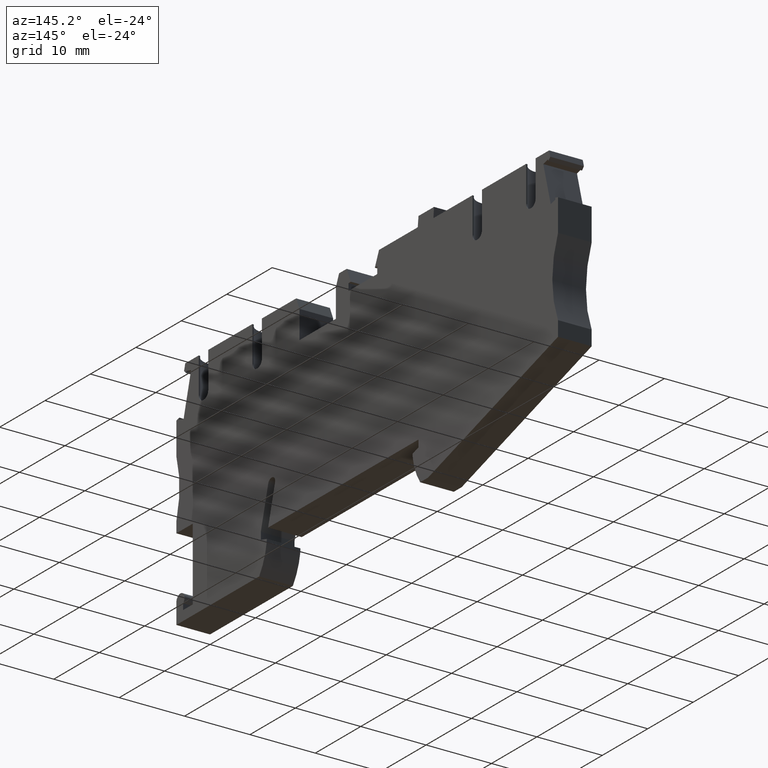
[diagram: clean part render]
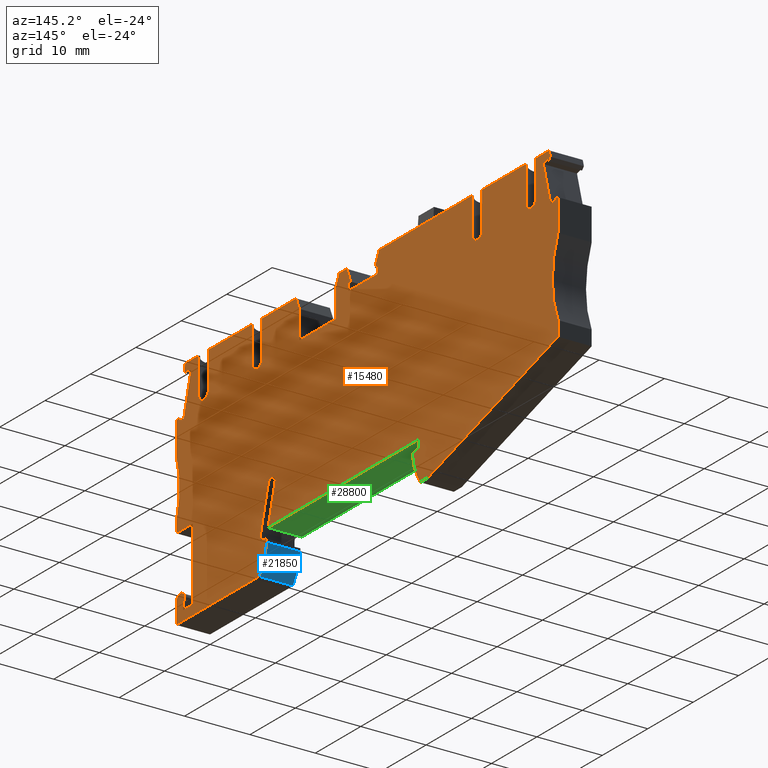
[diagram: same view with three faces highlighted in distinct colors, each labeled with its STEP entity id]
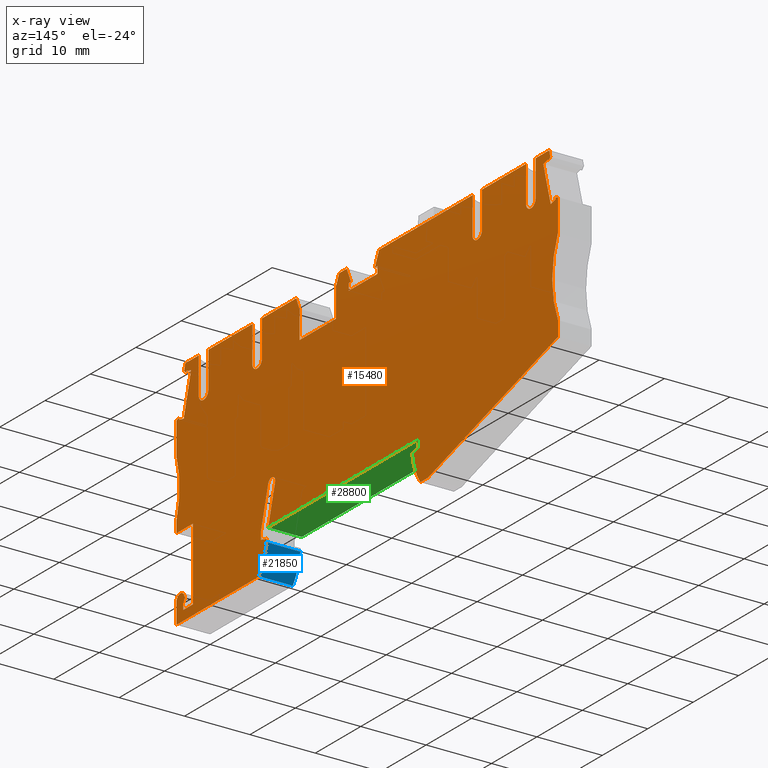
[diagram: x-ray of the same camera — body ghosted, the three highlighted faces saturated]
A machine part, auxiliary view with three faces highlighted in distinct colors.
The next image is the same camera in x-ray (body ghosted, the three faces saturated) — at least one of them is partly hidden behind the body in this view.
Their STEP definitions:

[orange] entity #15480 — the highlighted planar face has unit normal (-1, 0, 0).
#120=CARTESIAN_POINT('',(-22.3678327783245,-21.2000000001803,
53.6699999998948));
#130=VERTEX_POINT('',#120);
#280=CARTESIAN_POINT('',(-22.3678327783245,-16.3000793279218,
53.6699999998976));
#290=VERTEX_POINT('',#280);
#320=CARTESIAN_POINT('',(-22.3678327783245,-39.6931569607133,
53.6699999998842));
#330=DIRECTION('',(-2.05391259555654E-15,1.,5.73423253324989E-13));
#340=VECTOR('',#330,1.);
#350=LINE('',#320,#340);
#360=EDGE_CURVE('',#130,#290,#350,.T.);
#1160=CARTESIAN_POINT('',(15.5196672216766,-12.3250000000004,
53.6699999999044));
#1170=VERTEX_POINT('',#1160);
#1200=CARTESIAN_POINT('',(15.5196672216766,-44.3451570119223,
53.6700000000004));
#1210=DIRECTION('',(0.,1.,0.));
#1220=VECTOR('',#1210,1.);
#1230=LINE('',#1200,#1220);
#1240=CARTESIAN_POINT('',(15.5196672216766,-11.2550000000008,
53.669999999905));
#1250=VERTEX_POINT('',#1240);
#1260=EDGE_CURVE('',#1170,#1250,#1230,.T.);
#1530=CARTESIAN_POINT('',(13.4506669409568,-9.15000000000267,
53.669999999906));
#1540=VERTEX_POINT('',#1530);
#1590=CARTESIAN_POINT('',(-0.588529799346603,-42.3673191137585,
53.6699999998853));
#1600=DIRECTION('',(-0.389303997086923,-0.921109330021222,
-5.75151037907062E-13));
#1610=VECTOR('',#1600,1.);
#1620=LINE('',#1590,#1610);
#1630=CARTESIAN_POINT('',(12.7321672216754,-10.8500000000026,
53.6699999999049));
#1640=VERTEX_POINT('',#1630);
#1650=EDGE_CURVE('',#1540,#1640,#1620,.T.);
#2100=CARTESIAN_POINT('',(-3.76783277832417,-38.3999999999923,
53.6699999998872));
#2110=VERTEX_POINT('',#2100);
#2140=CARTESIAN_POINT('',(-4.69574524451491,-41.8630164687898,
53.6699999999973));
#2150=DIRECTION('',(0.258819045102717,0.965925826289016,0.));
#2160=VECTOR('',#2150,1.);
#2170=LINE('',#2140,#2160);
#2180=CARTESIAN_POINT('',(-2.15824717892757,-32.3929447639179,
53.6699999998908));
#2190=VERTEX_POINT('',#2180);
#2200=EDGE_CURVE('',#2110,#2190,#2170,.T.);
#3600=CARTESIAN_POINT('',(21.3167687545899,-11.2550000000008,
53.6699999999057));
#3610=VERTEX_POINT('',#3600);
#3660=CARTESIAN_POINT('',(-30.9543174626305,-11.2550000000008,
53.6699999998994));
#3670=DIRECTION('',(1.,0.,1.20466137065733E-13));
#3680=VECTOR('',#3670,1.);
#3690=LINE('',#3660,#3680);
#3700=CARTESIAN_POINT('',(21.8446672216767,-11.2550000000008,
53.6699999999058));
#3710=VERTEX_POINT('',#3700);
#3720=EDGE_CURVE('',#3610,#3710,#3690,.T.);
#5210=CARTESIAN_POINT('',(31.4487054040428,-46.3009969707497,
53.6699999998869));
#5220=DIRECTION('',(0.402320578211921,-0.915498854366965,
-4.76507722169117E-13));
#5230=VECTOR('',#5220,1.);
#5240=LINE('',#5210,#5230);
#5250=CARTESIAN_POINT('',(15.1225128467016,-9.15000000000248,
53.6699999999062));
#5260=VERTEX_POINT('',#5250);
#5270=CARTESIAN_POINT('',(16.0475656887622,-11.2550000000008,
53.6699999999051));
#5280=VERTEX_POINT('',#5270);
#5290=EDGE_CURVE('',#5260,#5280,#5240,.T.);
#5680=CARTESIAN_POINT('',(-26.7897303657746,-39.1502162070807,
53.6699999998839));
#5690=DIRECTION('',(0.258819045102715,0.965925826289016,
5.8507365618965E-13));
#5700=VECTOR('',#5690,1.);
#5710=LINE('',#5680,#5700);
#5720=CARTESIAN_POINT('',(-20.7658666864001,-16.6688508978045,
53.6699999998976));
#5730=VERTEX_POINT('',#5720);
#5740=CARTESIAN_POINT('',(-19.1288362261254,-10.5593700465262,
53.6699999999013));
#5750=VERTEX_POINT('',#5740);
#5760=EDGE_CURVE('',#5730,#5750,#5710,.T.);
#6190=CARTESIAN_POINT('',(-2.4678327783249,-39.848333950161,
53.6699999998865));
#6200=VERTEX_POINT('',#6190);
#6370=CARTESIAN_POINT('',(-2.46783277832461,-40.3000000000014,
53.6699999998859));
#6380=VERTEX_POINT('',#6370);
#6410=CARTESIAN_POINT('',(-2.46783277832347,-42.1365697226813,
53.6699999999973));
#6420=DIRECTION('',(6.29260532569731E-13,-1.,0.));
#6430=VECTOR('',#6420,1.);
#6440=LINE('',#6410,#6430);
#6450=EDGE_CURVE('',#6200,#6380,#6440,.T.);
#7130=CARTESIAN_POINT('',(-20.8678330870157,-42.9000001007158,
53.6699999998825));
#7140=VERTEX_POINT('',#7130);
#7310=CARTESIAN_POINT('',(-18.7678330870612,-42.9000001007158,
53.6699999998828));
#7320=VERTEX_POINT('',#7310);
#7350=CARTESIAN_POINT('',(-34.8398349047691,-42.9000001007158,
53.6699999998808));
#7360=DIRECTION('',(1.,-1.38777878078145E-16,1.20473075959637E-13));
#7370=VECTOR('',#7360,1.);
#7380=LINE('',#7350,#7370);
#7390=EDGE_CURVE('',#7140,#7320,#7380,.T.);
#7620=CARTESIAN_POINT('',(-22.3678330870434,-41.2999999943141,
53.6699999998932));
#7630=VERTEX_POINT('',#7620);
#7660=CARTESIAN_POINT('',(-22.3678330870598,-39.6931569228054,
53.6699999998842));
#7670=DIRECTION('',(3.85705356542587E-13,1.,5.73430192218893E-13));
#7680=VECTOR('',#7670,1.);
#7690=LINE('',#7660,#7680);
#7700=CARTESIAN_POINT('',(-22.3678330870616,-44.4000000000009,
53.6699999998815));
#7710=VERTEX_POINT('',#7700);
#7720=EDGE_CURVE('',#7710,#7630,#7690,.T.);
#8540=CARTESIAN_POINT('',(-20.232855258731,-10.5454626322162,
53.6699999999011));
#8550=VERTEX_POINT('',#8540);
#8600=CARTESIAN_POINT('',(-27.8621918696399,-39.0185344922433,
53.6699999998839));
#8610=DIRECTION('',(0.258819045101928,0.965925826289227,
5.8507365618965E-13));
#8620=VECTOR('',#8610,1.);
#8630=LINE('',#8600,#8620);
#8640=CARTESIAN_POINT('',(-20.1623768602548,-10.2824336682667,
53.6699999999013));
#8650=VERTEX_POINT('',#8640);
#8660=EDGE_CURVE('',#8550,#8650,#8630,.T.);
#9440=CARTESIAN_POINT('',(30.9321672216756,-46.2375740568382,
53.6699999999973));
#9450=DIRECTION('',(0.,1.,0.));
#9460=VECTOR('',#9450,1.);
#9470=LINE('',#9440,#9460);
#9480=CARTESIAN_POINT('',(30.9321672216756,-39.5000000000005,
53.6699999998907));
#9490=VERTEX_POINT('',#9480);
#9500=CARTESIAN_POINT('',(30.9321672216756,-38.4000000000006,
53.6699999998913));
#9510=VERTEX_POINT('',#9500);
#9520=EDGE_CURVE('',#9490,#9510,#9470,.T.);
#9860=CARTESIAN_POINT('',(29.3756912534038,-19.9194100470033,
53.6699999999017));
#9870=DIRECTION('',(1.20466702215975E-13,5.7343834486746E-13,-1.));
#9880=DIRECTION('',(-1.,0.,-1.20466702215975E-13));
#9890=AXIS2_PLACEMENT_3D('',#9860,#9870,#9880);
#9900=PLANE('',#9890);
#9910=CARTESIAN_POINT('',(61.6321672216756,-50.0070600765573,
53.6699999998884));
#9920=DIRECTION('',(-8.32667268468867E-17,-1.,-5.73430192218893E-13));
#9930=VECTOR('',#9920,1.);
#9940=LINE('',#9910,#9930);
#9950=CARTESIAN_POINT('',(61.6321672217037,-33.2000000000664,
53.6700000000533));
#9960=VERTEX_POINT('',#9950);
#9970=CARTESIAN_POINT('',(61.6321672216756,-35.494301062852,
53.6699999998967));
#9980=VERTEX_POINT('',#9970);
#9990=EDGE_CURVE('',#9960,#9980,#9940,.T.);
#10000=ORIENTED_EDGE('',*,*,#9990,.F.);
#10010=CARTESIAN_POINT('',(-37.7300719678448,-66.4390920013757,
53.669999999867));
#10020=DIRECTION('',(-0.954769257307126,-0.297347717834187,
-2.85521606357975E-13));
#10030=VECTOR('',#10020,1.);
#10040=LINE('',#10010,#10030);
#10050=CARTESIAN_POINT('',(33.0363951674783,-44.4000000000008,
53.6699999998881));
#10060=VERTEX_POINT('',#10050);
#10070=EDGE_CURVE('',#9980,#10060,#10040,.T.);
#10080=ORIENTED_EDGE('',*,*,#10070,.F.);
#10090=CARTESIAN_POINT('',(-35.0240117337567,-44.3999999999968,
53.6699999998799));
#10100=DIRECTION('',(-1.,5.79120085220097E-14,-1.20466137065733E-13));
#10110=VECTOR('',#10100,1.);
#10120=LINE('',#10090,#10110);
#10130=CARTESIAN_POINT('',(31.2911108748078,-44.4000000000007,
53.669999999892));
#10140=VERTEX_POINT('',#10130);
#10150=EDGE_CURVE('',#10060,#10140,#10120,.T.);
#10160=ORIENTED_EDGE('',*,*,#10150,.F.);
#10170=CARTESIAN_POINT('',(39.0261399010515,-38.8846282117031,
53.6699999999973));
#10180=DIRECTION('',(0.,0.,-1.));
#10190=DIRECTION('',(-1.,0.,0.));
#10200=AXIS2_PLACEMENT_3D('',#10170,#10180,#10190);
#10210=CIRCLE('',#10200,9.499999999999);
#10220=CARTESIAN_POINT('',(29.6321672216751,-40.3000000000011,
53.6699999998901));
#10230=VERTEX_POINT('',#10220);
#10240=EDGE_CURVE('',#10140,#10230,#10210,.T.);
#10250=ORIENTED_EDGE('',*,*,#10240,.F.);
#10260=CARTESIAN_POINT('',(29.6321672216711,-46.0779541276638,
53.6699999999973));
#10270=DIRECTION('',(6.9022565440946E-13,1.,0.));
#10280=VECTOR('',#10270,1.);
#10290=LINE('',#10260,#10280);
#10300=CARTESIAN_POINT('',(29.6321672216754,-39.8483339501609,
53.6699999998903));
#10310=VERTEX_POINT('',#10300);
#10320=EDGE_CURVE('',#10230,#10310,#10290,.T.);
#10330=ORIENTED_EDGE('',*,*,#10320,.F.);
#10340=CARTESIAN_POINT('',(-36.6456801825381,-57.6074296381885,
53.6699999999973));
#10350=DIRECTION('',(0.965925826289086,0.258819045102457,0.));
#10360=VECTOR('',#10350,1.);
#10370=LINE('',#10340,#10360);
#10380=EDGE_CURVE('',#10310,#9490,#10370,.T.);
#10390=ORIENTED_EDGE('',*,*,#10380,.F.);
#10400=ORIENTED_EDGE('',*,*,#9520,.F.);
#10410=CARTESIAN_POINT('',(-34.2873043683398,-38.4000000000007,
53.6699999998835));
#10420=DIRECTION('',(-1.,0.,-1.20466137065733E-13));
#10430=VECTOR('',#10420,1.);
#10440=LINE('',#10410,#10430);
#10450=CARTESIAN_POINT('',(-2.1678327783247,-38.4000000000007,
53.6699999998873));
#10460=VERTEX_POINT('',#10450);
#10470=EDGE_CURVE('',#9510,#10460,#10440,.T.);
#10480=ORIENTED_EDGE('',*,*,#10470,.F.);
#10490=CARTESIAN_POINT('',(-3.14670858760425,-42.0532142545311,
53.6699999998851));
#10500=DIRECTION('',(0.25881904510258,0.965925826289053,
5.85087533977458E-13));
#10510=VECTOR('',#10500,1.);
#10520=LINE('',#10490,#10510);
#10530=CARTESIAN_POINT('',(-0.639544951389126,-32.6963521812894,
53.6699999998908));
#10540=VERTEX_POINT('',#10530);
#10550=EDGE_CURVE('',#10460,#10540,#10520,.T.);
#10560=ORIENTED_EDGE('',*,*,#10550,.F.);
#10570=CARTESIAN_POINT('',(-1.3156930297918,-32.5151788497179,
53.6699999999973));
#10580=DIRECTION('',(0.,0.,1.));
#10590=DIRECTION('',(1.,0.,0.));
#10600=AXIS2_PLACEMENT_3D('',#10570,#10580,#10590);
#10610=CIRCLE('',#10600,0.700000000000238);
#10620=CARTESIAN_POINT('',(-1.15584166251053,-31.8336749683066,
53.6699999998908));
#10630=VERTEX_POINT('',#10620);
#10640=EDGE_CURVE('',#10540,#10630,#10610,.T.);
#10650=ORIENTED_EDGE('',*,*,#10640,.F.);
#10660=CARTESIAN_POINT('',(-1.38550651789581,-32.6000000000007,
53.6699999999973));
#10670=DIRECTION('',(0.,0.,1.));
#10680=DIRECTION('',(1.,0.,0.));
#10690=AXIS2_PLACEMENT_3D('',#10660,#10670,#10680);
#10700=CIRCLE('',#10690,0.80000000000001);
#10710=EDGE_CURVE('',#10630,#2190,#10700,.T.);
#10720=ORIENTED_EDGE('',*,*,#10710,.F.);
#10730=ORIENTED_EDGE('',*,*,#2200,.T.);
#10740=CARTESIAN_POINT('',(-3.76783277832419,-41.9769497935074,
53.6699999999973));
#10750=DIRECTION('',(0.,-1.,0.));
#10760=VECTOR('',#10750,1.);
#10770=LINE('',#10740,#10760);
#10780=CARTESIAN_POINT('',(-3.76783277832419,-39.5000000000006,
53.6699999998865));
#10790=VERTEX_POINT('',#10780);
#10800=EDGE_CURVE('',#2110,#10790,#10770,.T.);
#10810=ORIENTED_EDGE('',*,*,#10800,.F.);
#10820=CARTESIAN_POINT('',(-33.4459564075282,-31.5477707406809,
53.6699999999973));
#10830=DIRECTION('',(0.965925826289041,-0.258819045102623,0.));
#10840=VECTOR('',#10830,1.);
#10850=LINE('',#10820,#10840);
#10860=EDGE_CURVE('',#10790,#6200,#10850,.T.);
#10870=ORIENTED_EDGE('',*,*,#10860,.F.);
#10880=ORIENTED_EDGE('',*,*,#6450,.F.);
#10890=CARTESIAN_POINT('',(-11.861805457701,-38.8846282117031,
53.6699999999973));
#10900=DIRECTION('',(0.,0.,1.));
#10910=DIRECTION('',(1.,0.,0.));
#10920=AXIS2_PLACEMENT_3D('',#10890,#10900,#10910);
#10930=CIRCLE('',#10920,9.49999999999899);
#10940=CARTESIAN_POINT('',(-4.1267764314573,-44.4000000000006,
53.6699999998859));
#10950=VERTEX_POINT('',#10940);
#10960=EDGE_CURVE('',#10950,#6380,#10930,.T.);
#10970=ORIENTED_EDGE('',*,*,#10960,.T.);
#10980=CARTESIAN_POINT('',(-35.0240117337573,-44.4000000000011,
53.6699999998799));
#10990=DIRECTION('',(-1.,-1.55014889813287E-14,-1.20473075959637E-13));
#11000=VECTOR('',#10990,1.);
#11010=LINE('',#10980,#11000);
#11020=EDGE_CURVE('',#10950,#7710,#11010,.T.);
#11030=ORIENTED_EDGE('',*,*,#11020,.F.);
#11040=ORIENTED_EDGE('',*,*,#7720,.F.);
#11050=CARTESIAN_POINT('',(-21.4678330870436,-41.2999999943145,
53.6699999998834));
#11060=DIRECTION('',(1.09240999716883E-11,6.46588825410369E-17,1.));
#11070=DIRECTION('',(1.,-1.38777878078145E-16,-1.09240999716883E-11));
#11080=AXIS2_PLACEMENT_3D('',#11050,#11060,#11070);
#11090=CIRCLE('',#11080,0.89999999999984);
#11100=CARTESIAN_POINT('',(-20.8678330870177,-41.9708203875411,
53.6699999998768));
#11110=VERTEX_POINT('',#11100);
#11120=EDGE_CURVE('',#11110,#7630,#11090,.T.);
#11130=ORIENTED_EDGE('',*,*,#11120,.T.);
#11140=CARTESIAN_POINT('',(-20.8678330870221,-39.8773337641644,
53.6699999998842));
#11150=DIRECTION('',(2.11904105373861E-12,-1.,-5.73423253324989E-13));
#11160=VECTOR('',#11150,1.);
#11170=LINE('',#11140,#11160);
#11180=EDGE_CURVE('',#11110,#7140,#11170,.T.);
#11190=ORIENTED_EDGE('',*,*,#11180,.F.);
#11200=ORIENTED_EDGE('',*,*,#7390,.F.);
#11210=CARTESIAN_POINT('',(-18.7678330870612,-40.1351813420557,
53.6699999998844));
#11220=DIRECTION('',(0.,1.,5.73430192218893E-13));
#11230=VECTOR('',#11220,1.);
#11240=LINE('',#11210,#11230);
#11250=CARTESIAN_POINT('',(-18.7678330870612,-31.8,53.6699999998891));
#11260=VERTEX_POINT('',#11250);
#11270=EDGE_CURVE('',#7320,#11260,#11240,.T.);
#11280=ORIENTED_EDGE('',*,*,#11270,.F.);
#11290=CARTESIAN_POINT('',(-33.4769262663805,-31.8,53.6699999998874));
#11300=DIRECTION('',(-1.,0.,-1.20466137065733E-13));
#11310=VECTOR('',#11300,1.);
#11320=LINE('',#11290,#11310);
#11330=CARTESIAN_POINT('',(-22.3678327783246,-31.8,53.6699999998887));
#11340=VERTEX_POINT('',#11330);
#11350=EDGE_CURVE('',#11260,#11340,#11320,.T.);
#11360=ORIENTED_EDGE('',*,*,#11350,.F.);
#11370=CARTESIAN_POINT('',(-22.3678327783246,-39.6931569607133,
53.6699999998842));
#11380=DIRECTION('',(-2.05391259555654E-15,1.,5.73423253324989E-13));
#11390=VECTOR('',#11380,1.);
#11400=LINE('',#11370,#11390);
#11410=CARTESIAN_POINT('',(-22.367832778299,-30.1999999999206,
53.6699999997342));
#11420=VERTEX_POINT('',#11410);
#11430=EDGE_CURVE('',#11340,#11420,#11400,.T.);
#11440=ORIENTED_EDGE('',*,*,#11430,.F.);
#11450=CARTESIAN_POINT('',(-36.6769207995788,-25.700000000002,
53.6699999998905));
#11460=DIRECTION('',(1.09240999716883E-11,6.46588825410369E-17,1.));
#11470=DIRECTION('',(1.,-1.38777878078145E-16,-1.09240999716883E-11));
#11480=AXIS2_PLACEMENT_3D('',#11450,#11460,#11470);
#11490=CIRCLE('',#11480,15.);
#11500=EDGE_CURVE('',#11420,#130,#11490,.T.);
#11510=ORIENTED_EDGE('',*,*,#11500,.F.);
#11520=ORIENTED_EDGE('',*,*,#360,.F.);
#11530=CARTESIAN_POINT('',(-31.8869546500592,-18.8507203460327,
53.669999999895));
#11540=DIRECTION('',(-0.965925826290942,-0.25881904509553,
-2.647881913731E-13));
#11550=VECTOR('',#11540,1.);
#11560=LINE('',#11530,#11550);
#11570=CARTESIAN_POINT('',(-21.7289289220527,-16.1288855555976,
53.6699999998978));
#11580=VERTEX_POINT('',#11570);
#11590=EDGE_CURVE('',#11580,#290,#11560,.T.);
#11600=ORIENTED_EDGE('',*,*,#11590,.T.);
#11610=CARTESIAN_POINT('',(-27.8621918696753,-39.0185344922389,
53.6699999998839));
#11620=DIRECTION('',(0.258819045103216,0.965925826288882,
5.8507365618965E-13));
#11630=VECTOR('',#11620,1.);
#11640=LINE('',#11610,#11630);
#11650=CARTESIAN_POINT('',(-21.7994073205285,-16.3919145195448,
53.6699999998976));
#11660=VERTEX_POINT('',#11650);
#11670=EDGE_CURVE('',#11660,#11580,#11640,.T.);
#11680=ORIENTED_EDGE('',*,*,#11670,.T.);
#11690=CARTESIAN_POINT('',(-31.2733580505142,-13.8533770723106,
53.6699999998979));
#11700=DIRECTION('',(-0.96592582628901,0.25881904510274,
3.20715676238592E-14));
#11710=VECTOR('',#11700,1.);
#11720=LINE('',#11690,#11710);
#11730=EDGE_CURVE('',#5730,#11660,#11720,.T.);
#11740=ORIENTED_EDGE('',*,*,#11730,.T.);
#11750=ORIENTED_EDGE('',*,*,#5760,.F.);
#11760=CARTESIAN_POINT('',(-30.4949591286781,-7.51382659371585,
53.6699999999016));
#11770=DIRECTION('',(0.9659258262891,-0.258819045102404,
-3.20576898360514E-14));
#11780=VECTOR('',#11770,1.);
#11790=LINE('',#11760,#11780);
#11800=EDGE_CURVE('',#8650,#5750,#11790,.T.);
#11810=ORIENTED_EDGE('',*,*,#11800,.T.);
#11820=ORIENTED_EDGE('',*,*,#8660,.T.);
#11830=CARTESIAN_POINT('',(-29.7042555077718,-1.07406238320077,
53.6699999999054));
#11840=DIRECTION('',(-0.707106781187495,0.7071067811856,
3.20243831453126E-13));
#11850=VECTOR('',#11840,1.);
#11860=LINE('',#11830,#11850);
#11870=CARTESIAN_POINT('',(-20.6655984466231,-10.1127194443252,
53.6699999999013));
#11880=VERTEX_POINT('',#11870);
#11890=EDGE_CURVE('',#8550,#11880,#11860,.T.);
#11900=ORIENTED_EDGE('',*,*,#11890,.F.);
#11910=CARTESIAN_POINT('',(-28.3934111192612,-38.9533089699354,
53.6699999998839));
#11920=DIRECTION('',(-0.258819045102936,-0.965925826288957,
-5.8507365618965E-13));
#11930=VECTOR('',#11920,1.);
#11940=LINE('',#11910,#11930);
#11950=CARTESIAN_POINT('',(-20.4076385489785,-9.15000000000193,
53.6699999999019));
#11960=VERTEX_POINT('',#11950);
#11970=EDGE_CURVE('',#11960,#11880,#11940,.T.);
#11980=ORIENTED_EDGE('',*,*,#11970,.T.);
#11990=CARTESIAN_POINT('',(-30.69585596193,-9.15000000000193,
53.6699999999007));
#12000=DIRECTION('',(1.,0.,1.20466137065733E-13));
#12010=VECTOR('',#12000,1.);
#12020=LINE('',#11990,#12010);
#12030=CARTESIAN_POINT('',(-17.4428330870473,-9.15000000000193,
53.6699999999023));
#12040=VERTEX_POINT('',#12030);
#12050=EDGE_CURVE('',#11960,#12040,#12020,.T.);
#12060=ORIENTED_EDGE('',*,*,#12050,.F.);
#12070=CARTESIAN_POINT('',(-17.442833087066,-40.2978708852515,
53.6699999998844));
#12080=DIRECTION('',(-6.00366978353861E-13,-1.,-5.7342325332499E-13));
#12090=VECTOR('',#12080,1.);
#12100=LINE('',#12070,#12090);
#12110=CARTESIAN_POINT('',(-17.4428330870506,-14.6445224466522,
53.6699999998991));
#12120=VERTEX_POINT('',#12110);
#12130=EDGE_CURVE('',#12040,#12120,#12100,.T.);
#12140=ORIENTED_EDGE('',*,*,#12130,.F.);
#12150=CARTESIAN_POINT('',(-16.4428330870506,-14.6445224466529,
53.6699999998992));
#12160=DIRECTION('',(-1.13732918056819E-16,9.14883013452801E-18,1.));
#12170=DIRECTION('',(1.,-4.83071915802213E-13,1.13732918056823E-16));
#12180=AXIS2_PLACEMENT_3D('',#12150,#12160,#12170);
#12190=CIRCLE('',#12180,1.);
#12200=CARTESIAN_POINT('',(-16.4428330870504,-15.6445224466529,
53.6700000000042));
#12210=VERTEX_POINT('',#12200);
#12220=EDGE_CURVE('',#12120,#12210,#12190,.T.);
#12230=ORIENTED_EDGE('',*,*,#12220,.F.);
#12240=CARTESIAN_POINT('',(-31.493283048838,-15.6445224468315,
53.6699999998969));
#12250=DIRECTION('',(1.,-2.74572031777609E-13,1.20466137065853E-13));
#12260=VECTOR('',#12250,1.);
#12270=LINE('',#12240,#12260);
#12280=CARTESIAN_POINT('',(-16.3428330870511,-15.6445224468356,
53.6699999998987));
#12290=VERTEX_POINT('',#12280);
#12300=EDGE_CURVE('',#12210,#12290,#12270,.T.);
#12310=ORIENTED_EDGE('',*,*,#12300,.F.);
#12320=CARTESIAN_POINT('',(-16.3428330870498,-14.6445224466592,
53.6699999998993));
#12330=DIRECTION('',(1.13732918056819E-16,-9.14883013452801E-18,-1.));
#12340=DIRECTION('',(-1.,3.74825170901261E-13,-1.13732918056822E-16));
#12350=AXIS2_PLACEMENT_3D('',#12320,#12330,#12340);
#12360=CIRCLE('',#12350,0.999999999999998);
#12370=CARTESIAN_POINT('',(-15.3428330870506,-14.6445224466596,
53.6699999998994));
#12380=VERTEX_POINT('',#12370);
#12390=EDGE_CURVE('',#12380,#12290,#12360,.T.);
#12400=ORIENTED_EDGE('',*,*,#12390,.T.);
#12410=CARTESIAN_POINT('',(-15.3428330870661,-40.5557184631475,
53.6699999998845));
#12420=DIRECTION('',(6.00366978353861E-13,1.,5.7342325332499E-13));
#12430=VECTOR('',#12420,1.);
#12440=LINE('',#12410,#12430);
#12450=CARTESIAN_POINT('',(-15.3428330870473,-9.15000000000193,
53.6699999999025));
#12460=VERTEX_POINT('',#12450);
#12470=EDGE_CURVE('',#12380,#12460,#12440,.T.);
#12480=ORIENTED_EDGE('',*,*,#12470,.F.);
#12490=CARTESIAN_POINT('',(-5.64283277507311,-9.15000000000193,
53.6699999999037));
#12500=VERTEX_POINT('',#12490);
#12510=EDGE_CURVE('',#12460,#12500,#12020,.T.);
#12520=ORIENTED_EDGE('',*,*,#12510,.F.);
#12530=CARTESIAN_POINT('',(-5.64283277509269,-41.7467287422112,
53.669999999885));
#12540=DIRECTION('',(-6.00366978353861E-13,-1.,-5.7342325332499E-13));
#12550=VECTOR('',#12540,1.);
#12560=LINE('',#12530,#12550);
#12570=CARTESIAN_POINT('',(-5.64283277507642,-14.6445224427592,
53.6699999999007));
#12580=VERTEX_POINT('',#12570);
#12590=EDGE_CURVE('',#12500,#12580,#12560,.T.);
#12600=ORIENTED_EDGE('',*,*,#12590,.F.);
#12610=CARTESIAN_POINT('',(-4.64283277507642,-14.6445224427599,
53.6699999999007));
#12620=DIRECTION('',(-1.13732918056819E-16,9.14883013452801E-18,1.));
#12630=DIRECTION('',(1.,-4.83071915802213E-13,1.13732918056823E-16));
#12640=AXIS2_PLACEMENT_3D('',#12610,#12620,#12630);
#12650=CIRCLE('',#12640,1.);
#12660=CARTESIAN_POINT('',(-4.64283277507591,-15.6445224429344,
53.6699999999001));
#12670=VERTEX_POINT('',#12660);
#12680=EDGE_CURVE('',#12580,#12670,#12650,.T.);
#12690=ORIENTED_EDGE('',*,*,#12680,.F.);
#12700=CARTESIAN_POINT('',(-31.4932830483586,-15.6445224429271,
53.6699999998969));
#12710=DIRECTION('',(1.,-2.74572031777609E-13,1.20466137065853E-13));
#12720=VECTOR('',#12710,1.);
#12730=LINE('',#12700,#12720);
#12740=CARTESIAN_POINT('',(-4.54283277507687,-15.6445224427662,
53.6699999999007));
#12750=VERTEX_POINT('',#12740);
#12760=EDGE_CURVE('',#12670,#12750,#12730,.T.);
#12770=ORIENTED_EDGE('',*,*,#12760,.F.);
#12780=CARTESIAN_POINT('',(-4.54283277507566,-14.6445224427662,
53.6699999999007));
#12790=DIRECTION('',(1.13732918056819E-16,-9.14883013452801E-18,-1.));
#12800=DIRECTION('',(-1.,3.74825170901261E-13,-1.13732918056822E-16));
#12810=AXIS2_PLACEMENT_3D('',#12780,#12790,#12800);
#12820=CIRCLE('',#12810,0.999999999999998);
#12830=CARTESIAN_POINT('',(-3.54283277507566,-14.6445224427666,
53.6699999999007));
#12840=VERTEX_POINT('',#12830);
#12850=EDGE_CURVE('',#12840,#12750,#12820,.T.);
#12860=ORIENTED_EDGE('',*,*,#12850,.T.);
#12870=CARTESIAN_POINT('',(-3.54283277509283,-42.0045763201073,
53.6699999998851));
#12880=DIRECTION('',(6.00366978353861E-13,1.,5.7342325332499E-13));
#12890=VECTOR('',#12880,1.);
#12900=LINE('',#12870,#12890);
#12910=CARTESIAN_POINT('',(-3.54283277507311,-9.15000000000193,
53.669999999904));
#12920=VERTEX_POINT('',#12910);
#12930=EDGE_CURVE('',#12840,#12920,#12900,.T.);
#12940=ORIENTED_EDGE('',*,*,#12930,.F.);
#12950=CARTESIAN_POINT('',(4.01366750239384,-9.15000000000193,
53.6699999999049));
#12960=VERTEX_POINT('',#12950);
#12970=EDGE_CURVE('',#12920,#12960,#12020,.T.);
#12980=ORIENTED_EDGE('',*,*,#12970,.F.);
#12990=CARTESIAN_POINT('',(19.0732001481594,-44.7814759919545,
53.6699999998862));
#13000=DIRECTION('',(-0.389303997086923,0.921109330021222,
4.81309436750621E-13));
#13010=VECTOR('',#13000,1.);
#13020=LINE('',#12990,#13010);
#13030=CARTESIAN_POINT('',(4.73216722167547,-10.8500000000023,
53.669999999904));
#13040=VERTEX_POINT('',#13030);
#13050=EDGE_CURVE('',#13040,#12960,#13020,.T.);
#13060=ORIENTED_EDGE('',*,*,#13050,.T.);
#13070=CARTESIAN_POINT('',(4.73216722167557,-43.0206185611821,
53.6699999999973));
#13080=DIRECTION('',(2.76167977375508E-15,-1.,0.));
#13090=VECTOR('',#13080,1.);
#13100=LINE('',#13070,#13090);
#13110=CARTESIAN_POINT('',(4.73216722167548,-15.1500000000009,
53.6699999999015));
#13120=VERTEX_POINT('',#13110);
#13130=EDGE_CURVE('',#13040,#13120,#13100,.T.);
#13140=ORIENTED_EDGE('',*,*,#13130,.F.);
#13150=CARTESIAN_POINT('',(-31.4325633273473,-15.1500000000009,
53.6700000000004));
#13160=DIRECTION('',(-1.,0.,0.));
#13170=VECTOR('',#13160,1.);
#13180=LINE('',#13150,#13170);
#13190=CARTESIAN_POINT('',(12.7321672216753,-15.1500000000009,
53.6699999999025));
#13200=VERTEX_POINT('',#13190);
#13210=EDGE_CURVE('',#13200,#13120,#13180,.T.);
#13220=ORIENTED_EDGE('',*,*,#13210,.T.);
#13230=CARTESIAN_POINT('',(12.7321672216755,-44.0028950484053,
53.6699999999973));
#13240=DIRECTION('',(-5.53723733531797E-15,1.,0.));
#13250=VECTOR('',#13240,1.);
#13260=LINE('',#13230,#13250);
#13270=EDGE_CURVE('',#13200,#1640,#13260,.T.);
#13280=ORIENTED_EDGE('',*,*,#13270,.F.);
#13290=ORIENTED_EDGE('',*,*,#1650,.T.);
#13300=CARTESIAN_POINT('',(-30.6958559619307,-9.15000000000802,
53.6699999999007));
#13310=DIRECTION('',(-1.,-1.21042065259758E-13,-1.20466137065733E-13));
#13320=VECTOR('',#13310,1.);
#13330=LINE('',#13300,#13320);
#13340=EDGE_CURVE('',#5260,#1540,#13330,.T.);
#13350=ORIENTED_EDGE('',*,*,#13340,.T.);
#13360=ORIENTED_EDGE('',*,*,#5290,.F.);
#13370=CARTESIAN_POINT('',(-30.9543174626305,-11.2550000000008,
53.6699999998994));
#13380=DIRECTION('',(1.,0.,1.20466137065733E-13));
#13390=VECTOR('',#13380,1.);
#13400=LINE('',#13370,#13390);
#13410=EDGE_CURVE('',#1250,#5280,#13400,.T.);
#13420=ORIENTED_EDGE('',*,*,#13410,.T.);
#13430=ORIENTED_EDGE('',*,*,#1260,.T.);
#13440=CARTESIAN_POINT('',(-31.0856969427962,-12.3249999999978,
53.6700000000004));
#13450=DIRECTION('',(-1.,5.79813974610488E-14,0.));
#13460=VECTOR('',#13450,1.);
#13470=LINE('',#13440,#13460);
#13480=CARTESIAN_POINT('',(21.8446672216767,-12.3250000000008,
53.6699999999052));
#13490=VERTEX_POINT('',#13480);
#13500=EDGE_CURVE('',#13490,#1170,#13470,.T.);
#13510=ORIENTED_EDGE('',*,*,#13500,.T.);
#13520=CARTESIAN_POINT('',(21.8446672216767,-45.1217693596332,
53.6700000000004));
#13530=DIRECTION('',(0.,-1.,0.));
#13540=VECTOR('',#13530,1.);
#13550=LINE('',#13520,#13540);
#13560=EDGE_CURVE('',#3710,#13490,#13550,.T.);
#13570=ORIENTED_EDGE('',*,*,#13560,.T.);
#13580=ORIENTED_EDGE('',*,*,#3720,.T.);
#13590=CARTESIAN_POINT('',(7.22281664605164,-43.3264318571172,
53.6699999998857));
#13600=DIRECTION('',(0.402320578212711,0.915498854366618,
5.73485703370125E-13));
#13610=VECTOR('',#13600,1.);
#13620=LINE('',#13590,#13610);
#13630=CARTESIAN_POINT('',(22.2418215966518,-9.15000000000427,
53.6699999999071));
#13640=VERTEX_POINT('',#13630);
#13650=EDGE_CURVE('',#3610,#13640,#13620,.T.);
#13660=ORIENTED_EDGE('',*,*,#13650,.F.);
#13670=CARTESIAN_POINT('',(-30.695855961931,-9.15000000001039,
53.6699999999007));
#13680=DIRECTION('',(1.,1.1550482792444E-13,1.20466137065733E-13));
#13690=VECTOR('',#13680,1.);
#13700=LINE('',#13670,#13690);
#13710=CARTESIAN_POINT('',(42.806680829654,-9.1500000000019,
53.6699999999095));
#13720=VERTEX_POINT('',#13710);
#13730=EDGE_CURVE('',#13640,#13720,#13700,.T.);
#13740=ORIENTED_EDGE('',*,*,#13730,.F.);
#13750=CARTESIAN_POINT('',(42.8066808219232,-47.6955809951801,
53.6699999998874));
#13760=DIRECTION('',(2.00561928176413E-10,1.,5.73430192218893E-13));
#13770=VECTOR('',#13760,1.);
#13780=LINE('',#13750,#13770);
#13790=CARTESIAN_POINT('',(42.806680828552,-14.6445224486726,
53.6699999999064));
#13800=VERTEX_POINT('',#13790);
#13810=EDGE_CURVE('',#13800,#13720,#13780,.T.);
#13820=ORIENTED_EDGE('',*,*,#13810,.T.);
#13830=CARTESIAN_POINT('',(43.8066808285513,-14.6445224488734,
53.6699999999065));
#13840=DIRECTION('',(-2.24755220519334E-16,9.14883014569476E-18,1.));
#13850=DIRECTION('',(1.,-2.00787511617229E-10,2.24755220521171E-16));
#13860=AXIS2_PLACEMENT_3D('',#13830,#13840,#13850);
#13870=CIRCLE('',#13860,0.999999999999998);
#13880=CARTESIAN_POINT('',(43.8066808283502,-15.6445224488734,
53.6699999999065));
#13890=VERTEX_POINT('',#13880);
#13900=EDGE_CURVE('',#13800,#13890,#13870,.T.);
#13910=ORIENTED_EDGE('',*,*,#13900,.F.);
#13920=CARTESIAN_POINT('',(-31.4932830471777,-15.6445224333097,
53.6699999998969));
#13930=DIRECTION('',(-1.,2.00470945399545E-10,-1.20469606512805E-13));
#13940=VECTOR('',#13930,1.);
#13950=LINE('',#13920,#13940);
#13960=CARTESIAN_POINT('',(43.9066808283505,-15.6445224484252,
53.6699999999059));
#13970=VERTEX_POINT('',#13960);
#13980=EDGE_CURVE('',#13970,#13890,#13950,.T.);
#13990=ORIENTED_EDGE('',*,*,#13980,.T.);
#14000=CARTESIAN_POINT('',(43.9066808285521,-14.6445224488872,
53.6699999999065));
#14010=DIRECTION('',(2.24755220519334E-16,-9.14883014569476E-18,-1.));
#14020=DIRECTION('',(-1.,2.00679264872328E-10,-2.2475522052117E-16));
#14030=AXIS2_PLACEMENT_3D('',#14000,#14010,#14020);
#14040=CIRCLE('',#14030,1.);
#14050=CARTESIAN_POINT('',(44.906680828552,-14.6445224490877,
53.6699999999066));
#14060=VERTEX_POINT('',#14050);
#14070=EDGE_CURVE('',#14060,#13970,#14040,.T.);
#14080=ORIENTED_EDGE('',*,*,#14070,.T.);
#14090=CARTESIAN_POINT('',(44.9066808218715,-47.9534285730699,
53.6699999998875));
#14100=DIRECTION('',(-2.00561928176413E-10,-1.,-5.73430192218893E-13));
#14110=VECTOR('',#14100,1.);
#14120=LINE('',#14090,#14110);
#14130=CARTESIAN_POINT('',(44.906680829654,-9.15000000000165,
53.6699999999098));
#14140=VERTEX_POINT('',#14130);
#14150=EDGE_CURVE('',#14140,#14060,#14120,.T.);
#14160=ORIENTED_EDGE('',*,*,#14150,.T.);
#14170=CARTESIAN_POINT('',(54.6066811416282,-9.15000000000053,
53.669999999911));
#14180=VERTEX_POINT('',#14170);
#14190=EDGE_CURVE('',#14140,#14180,#13700,.T.);
#14200=ORIENTED_EDGE('',*,*,#14190,.F.);
#14210=CARTESIAN_POINT('',(54.6066811336068,-49.1444388521044,
53.669999999888));
#14220=DIRECTION('',(2.00561928176413E-10,1.,5.73430192218893E-13));
#14230=VECTOR('',#14220,1.);
#14240=LINE('',#14210,#14230);
#14250=CARTESIAN_POINT('',(54.6066811405262,-14.6445224549394,
53.6699999999078));
#14260=VERTEX_POINT('',#14250);
#14270=EDGE_CURVE('',#14260,#14180,#14240,.T.);
#14280=ORIENTED_EDGE('',*,*,#14270,.T.);
#14290=CARTESIAN_POINT('',(55.6066811405255,-14.6445224551402,
53.6699999999079));
#14300=DIRECTION('',(-2.24755220519334E-16,9.14883014569476E-18,1.));
#14310=DIRECTION('',(1.,-2.00787511617229E-10,2.24755220521171E-16));
#14320=AXIS2_PLACEMENT_3D('',#14290,#14300,#14310);
#14330=CIRCLE('',#14320,0.999999999999998);
#14340=CARTESIAN_POINT('',(55.6066811403244,-15.6445224551402,
53.6699999999079));
#14350=VERTEX_POINT('',#14340);
#14360=EDGE_CURVE('',#14260,#14350,#14330,.T.);
#14370=ORIENTED_EDGE('',*,*,#14360,.F.);
#14380=CARTESIAN_POINT('',(-31.4932830476571,-15.6445224372141,
53.6699999998969));
#14390=DIRECTION('',(-1.,2.00470945399545E-10,-1.20469606512805E-13));
#14400=VECTOR('',#14390,1.);
#14410=LINE('',#14380,#14400);
#14420=CARTESIAN_POINT('',(55.7066811403246,-15.644522455154,
53.6699999999079));
#14430=VERTEX_POINT('',#14420);
#14440=EDGE_CURVE('',#14430,#14350,#14410,.T.);
#14450=ORIENTED_EDGE('',*,*,#14440,.T.);
#14460=CARTESIAN_POINT('',(55.7066811405262,-14.644522455154,
53.6699999999079));
#14470=DIRECTION('',(2.24755220519334E-16,-9.14883014569476E-18,-1.));
#14480=DIRECTION('',(-1.,2.00679264872328E-10,-2.2475522052117E-16));
#14490=AXIS2_PLACEMENT_3D('',#14460,#14470,#14480);
#14500=CIRCLE('',#14490,1.);
#14510=CARTESIAN_POINT('',(56.7066811405262,-14.6445224553545,
53.6699999999079));
#14520=VERTEX_POINT('',#14510);
#14530=EDGE_CURVE('',#14520,#14430,#14500,.T.);
#14540=ORIENTED_EDGE('',*,*,#14530,.T.);
#14550=CARTESIAN_POINT('',(56.7066811335551,-49.4022864299941,
53.6699999998881));
#14560=DIRECTION('',(-2.00561928176413E-10,-1.,-5.73430192218893E-13));
#14570=VECTOR('',#14560,1.);
#14580=LINE('',#14550,#14570);
#14590=CARTESIAN_POINT('',(56.7066811416282,-9.15000000000029,
53.6699999999112));
#14600=VERTEX_POINT('',#14590);
#14610=EDGE_CURVE('',#14600,#14520,#14580,.T.);
#14620=ORIENTED_EDGE('',*,*,#14610,.T.);
#14630=CARTESIAN_POINT('',(59.6719729923291,-9.14999999999995,
53.6699999999116));
#14640=VERTEX_POINT('',#14630);
#14650=EDGE_CURVE('',#14600,#14640,#13700,.T.);
#14660=ORIENTED_EDGE('',*,*,#14650,.F.);
#14670=CARTESIAN_POINT('',(70.9253346766914,-51.1481175619186,
53.6699999998888));
#14680=DIRECTION('',(0.258819045102926,-0.96592582628896,
-5.22692999993524E-13));
#14690=VECTOR('',#14680,1.);
#14700=LINE('',#14670,#14690);
#14710=CARTESIAN_POINT('',(59.9299328899745,-10.1127194443262,
53.669999999911));
#14720=VERTEX_POINT('',#14710);
#14730=EDGE_CURVE('',#14640,#14720,#14700,.T.);
#14740=ORIENTED_EDGE('',*,*,#14730,.F.);
#14750=CARTESIAN_POINT('',(24.5844766740098,-45.4581756601955,
53.6699999998865));
#14760=DIRECTION('',(0.707106781187503,0.707106781185593,
4.90718576884319E-13));
#14770=VECTOR('',#14760,1.);
#14780=LINE('',#14750,#14770);
#14790=CARTESIAN_POINT('',(59.4971897020823,-10.5454626322172,
53.6699999999108));
#14800=VERTEX_POINT('',#14790);
#14810=EDGE_CURVE('',#14800,#14720,#14780,.T.);
#14820=ORIENTED_EDGE('',*,*,#14810,.T.);
#14830=CARTESIAN_POINT('',(70.3579720572687,-51.0784541918201,
53.6699999998888));
#14840=DIRECTION('',(0.258819045101928,-0.965925826289227,
-5.22720755569139E-13));
#14850=VECTOR('',#14840,1.);
#14860=LINE('',#14830,#14850);
#14870=CARTESIAN_POINT('',(59.4267113036067,-10.2824336682672,
53.6699999999109));
#14880=VERTEX_POINT('',#14870);
#14890=EDGE_CURVE('',#14880,#14800,#14860,.T.);
#14900=ORIENTED_EDGE('',*,*,#14890,.T.);
#14910=CARTESIAN_POINT('',(-33.9055344520892,-35.290733546277,
53.6699999998853));
#14920=DIRECTION('',(0.9659258262891,0.258819045102404,
2.647881913731E-13));
#14930=VECTOR('',#14920,1.);
#14940=LINE('',#14910,#14930);
#14950=CARTESIAN_POINT('',(58.3931706694758,-10.5593700465269,
53.6699999999106));
#14960=VERTEX_POINT('',#14950);
#14970=EDGE_CURVE('',#14960,#14880,#14940,.T.);
#14980=ORIENTED_EDGE('',*,*,#14970,.T.);
#14990=CARTESIAN_POINT('',(69.21254186347,-50.9378130484296,
53.6699999998888));
#15000=DIRECTION('',(-0.258819045102705,0.965925826289019,
5.22720755569139E-13));
#15010=VECTOR('',#15000,1.);
#15020=LINE('',#14990,#15010);
#15030=CARTESIAN_POINT('',(60.0302011297503,-16.6688508978043,
53.6699999999073));
#15040=VERTEX_POINT('',#15030);
#15050=EDGE_CURVE('',#15040,#14960,#15020,.T.);
#15060=ORIENTED_EDGE('',*,*,#15050,.T.);
#15070=CARTESIAN_POINT('',(-34.7368944819781,-42.0616176360634,
53.6699999998813));
#15080=DIRECTION('',(-0.965925826288933,-0.258819045103026,
-2.647881913731E-13));
#15090=VECTOR('',#15080,1.);
#15100=LINE('',#15070,#15090);
#15110=CARTESIAN_POINT('',(61.0637417638805,-16.3919145195439,
53.6699999999076));
#15120=VERTEX_POINT('',#15110);
#15130=EDGE_CURVE('',#15120,#15040,#15100,.T.);
#15140=ORIENTED_EDGE('',*,*,#15130,.T.);
#15150=CARTESIAN_POINT('',(70.3579720573371,-51.0784541918285,
53.6699999998888));
#15160=DIRECTION('',(0.258819045103503,-0.965925826288805,
-5.22720755569139E-13));
#15170=VECTOR('',#15160,1.);
#15180=LINE('',#15150,#15170);
#15190=CARTESIAN_POINT('',(60.993263365406,-16.1288855555992,
53.6699999999077));
#15200=VERTEX_POINT('',#15190);
#15210=EDGE_CURVE('',#15200,#15120,#15180,.T.);
#15220=ORIENTED_EDGE('',*,*,#15210,.T.);
#15230=CARTESIAN_POINT('',(-28.6049712954992,7.87888906435055,
53.6699999999107));
#15240=DIRECTION('',(0.965925826290939,-0.25881904509554,
-3.20576898360514E-14));
#15250=VECTOR('',#15240,1.);
#15260=LINE('',#15230,#15250);
#15270=CARTESIAN_POINT('',(61.6321672216757,-16.3000793279228,
53.6699999999077));
#15280=VERTEX_POINT('',#15270);
#15290=EDGE_CURVE('',#15200,#15280,#15260,.T.);
#15300=ORIENTED_EDGE('',*,*,#15290,.F.);
#15310=CARTESIAN_POINT('',(61.6321672216757,-50.0070600765574,
53.6699999998884));
#15320=DIRECTION('',(-5.55111512312578E-17,-1.,-5.73430192218893E-13));
#15330=VECTOR('',#15320,1.);
#15340=LINE('',#15310,#15330);
#15350=CARTESIAN_POINT('',(61.6321672217227,-21.1999999998942,
53.6700000000533));
#15360=VERTEX_POINT('',#15350);
#15370=EDGE_CURVE('',#15280,#15360,#15340,.T.);
#15380=ORIENTED_EDGE('',*,*,#15370,.F.);
#15390=CARTESIAN_POINT('',(75.3798943065431,-27.200000000002,
53.6699999999031));
#15400=DIRECTION('',(1.09240999716883E-11,6.46588825410369E-17,1.));
#15410=DIRECTION('',(1.,-1.38777878078145E-16,-1.09240999716883E-11));
#15420=AXIS2_PLACEMENT_3D('',#15390,#15400,#15410);
#15430=CIRCLE('',#15420,15.);
#15440=EDGE_CURVE('',#15360,#9960,#15430,.T.);
#15450=ORIENTED_EDGE('',*,*,#15440,.F.);
#15460=EDGE_LOOP('',(#15450,#15380,#15300,#15220,#15140,#15060,#14980,
#14900,#14820,#14740,#14660,#14620,#14540,#14450,#14370,#14280,#14200,
#14160,#14080,#13990,#13910,#13820,#13740,#13660,#13580,#13570,#13510,
#13430,#13420,#13360,#13350,#13290,#13280,#13220,#13140,#13060,#12980,
#12940,#12860,#12770,#12690,#12600,#12520,#12480,#12400,#12310,#12230,
#12140,#12060,#11980,#11900,#11820,#11810,#11750,#11740,#11680,#11600,
#11520,#11510,#11440,#11360,#11280,#11200,#11190,#11130,#11040,#11030,
#10970,#10880,#10870,#10810,#10730,#10720,#10650,#10560,#10480,#10400,
#10390,#10330,#10250,#10160,#10080,#10000));
#15470=FACE_OUTER_BOUND('',#15460,.T.);
#15480=ADVANCED_FACE('',(#15470),#9900,.F.);

[blue] entity #21850 — the highlighted cylindrical surface (partial cylindrical patch) has radius 9.5 mm, axis along (1, 0, -0).
#6290=CARTESIAN_POINT('',(-2.46783277832461,-40.3000000000014,
48.5199999999973));
#6300=VERTEX_POINT('',#6290);
#6330=CARTESIAN_POINT('',(-2.46783277832461,-40.3000000000014,53.67));
#6340=DIRECTION('',(0.,0.,1.));
#6350=VECTOR('',#6340,1.);
#6360=LINE('',#6330,#6350);
#6370=CARTESIAN_POINT('',(-2.46783277832461,-40.3000000000014,
53.6699999998859));
#6380=VERTEX_POINT('',#6370);
#6390=EDGE_CURVE('',#6300,#6380,#6360,.T.);
#10890=CARTESIAN_POINT('',(-11.861805457701,-38.8846282117031,
53.6699999999973));
#10900=DIRECTION('',(0.,0.,1.));
#10910=DIRECTION('',(1.,0.,0.));
#10920=AXIS2_PLACEMENT_3D('',#10890,#10900,#10910);
#10930=CIRCLE('',#10920,9.49999999999899);
#10940=CARTESIAN_POINT('',(-4.1267764314573,-44.4000000000006,
53.6699999998859));
#10950=VERTEX_POINT('',#10940);
#10960=EDGE_CURVE('',#10950,#6380,#10930,.T.);
#15660=CARTESIAN_POINT('',(-4.1267764314573,-44.4000000000006,
48.5199999999973));
#15670=VERTEX_POINT('',#15660);
#15700=CARTESIAN_POINT('',(-11.861805457701,-38.8846282117031,
48.5199999999973));
#15710=DIRECTION('',(0.,0.,1.));
#15720=DIRECTION('',(1.,0.,0.));
#15730=AXIS2_PLACEMENT_3D('',#15700,#15710,#15720);
#15740=CIRCLE('',#15730,9.49999999999899);
#15750=EDGE_CURVE('',#15670,#6300,#15740,.T.);
#21690=CARTESIAN_POINT('',(-11.861805457701,-38.8846282117031,53.67));
#21700=DIRECTION('',(0.,0.,1.));
#21710=DIRECTION('',(1.,0.,0.));
#21720=AXIS2_PLACEMENT_3D('',#21690,#21700,#21710);
#21730=CYLINDRICAL_SURFACE('',#21720,9.49999999999899);
#21740=ORIENTED_EDGE('',*,*,#6390,.T.);
#21750=ORIENTED_EDGE('',*,*,#15750,.T.);
#21760=CARTESIAN_POINT('',(-4.1267764314573,-44.4000000000006,53.67));
#21770=DIRECTION('',(0.,0.,1.));
#21780=VECTOR('',#21770,1.);
#21790=LINE('',#21760,#21780);
#21800=EDGE_CURVE('',#15670,#10950,#21790,.T.);
#21810=ORIENTED_EDGE('',*,*,#21800,.F.);
#21820=ORIENTED_EDGE('',*,*,#10960,.F.);
#21830=EDGE_LOOP('',(#21820,#21810,#21750,#21740));
#21840=FACE_OUTER_BOUND('',#21830,.T.);
#21850=ADVANCED_FACE('',(#21840),#21730,.T.);

[green] entity #28800 — the highlighted planar face has unit normal (-0, 0, -1).
#9500=CARTESIAN_POINT('',(30.9321672216756,-38.4000000000006,
53.6699999998913));
#9510=VERTEX_POINT('',#9500);
#9660=CARTESIAN_POINT('',(30.9321672216756,-38.4000000000006,
48.5199999999973));
#9670=VERTEX_POINT('',#9660);
#9700=CARTESIAN_POINT('',(30.9321672216756,-38.4000000000007,53.67));
#9710=DIRECTION('',(0.,0.,1.));
#9720=VECTOR('',#9710,1.);
#9730=LINE('',#9700,#9720);
#9740=EDGE_CURVE('',#9670,#9510,#9730,.T.);
#10410=CARTESIAN_POINT('',(-34.2873043683398,-38.4000000000007,
53.6699999998835));
#10420=DIRECTION('',(-1.,0.,-1.20466137065733E-13));
#10430=VECTOR('',#10420,1.);
#10440=LINE('',#10410,#10430);
#10450=CARTESIAN_POINT('',(-2.1678327783247,-38.4000000000007,
53.6699999998873));
#10460=VERTEX_POINT('',#10450);
#10470=EDGE_CURVE('',#9510,#10460,#10440,.T.);
#16150=CARTESIAN_POINT('',(-2.1678327783247,-38.4000000000007,
48.5199999999973));
#16160=VERTEX_POINT('',#16150);
#16190=CARTESIAN_POINT('',(-34.2873043683398,-38.4000000000007,
48.5199999999973));
#16200=DIRECTION('',(-1.,0.,0.));
#16210=VECTOR('',#16200,1.);
#16220=LINE('',#16190,#16210);
#16230=EDGE_CURVE('',#9670,#16160,#16220,.T.);
#28640=CARTESIAN_POINT('',(-1.51622009190314,-38.4000000000007,53.67));
#28650=DIRECTION('',(-0.,-1.,-0.));
#28660=DIRECTION('',(-1.,0.,0.));
#28670=AXIS2_PLACEMENT_3D('',#28640,#28650,#28660);
#28680=PLANE('',#28670);
#28690=ORIENTED_EDGE('',*,*,#10470,.T.);
#28700=ORIENTED_EDGE('',*,*,#9740,.T.);
#28710=ORIENTED_EDGE('',*,*,#16230,.F.);
#28720=CARTESIAN_POINT('',(-2.16783277832471,-38.4000000000007,53.67));
#28730=DIRECTION('',(0.,0.,1.));
#28740=VECTOR('',#28730,1.);
#28750=LINE('',#28720,#28740);
#28760=EDGE_CURVE('',#16160,#10460,#28750,.T.);
#28770=ORIENTED_EDGE('',*,*,#28760,.F.);
#28780=EDGE_LOOP('',(#28770,#28710,#28700,#28690));
#28790=FACE_OUTER_BOUND('',#28780,.T.);
#28800=ADVANCED_FACE('',(#28790),#28680,.T.);